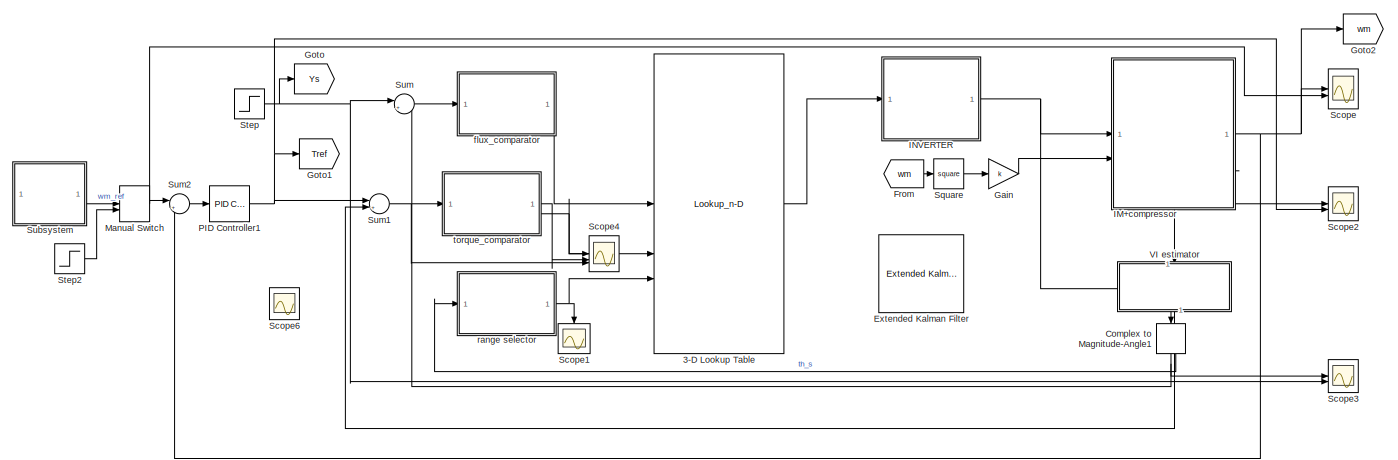
[diagram: root canvas - part 1/2, center side, full height]
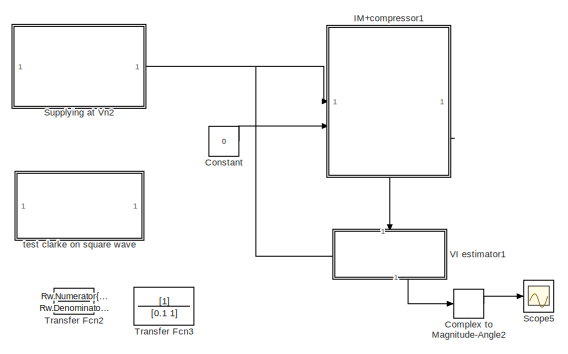
[diagram: root canvas - part 2/2, middle right region]
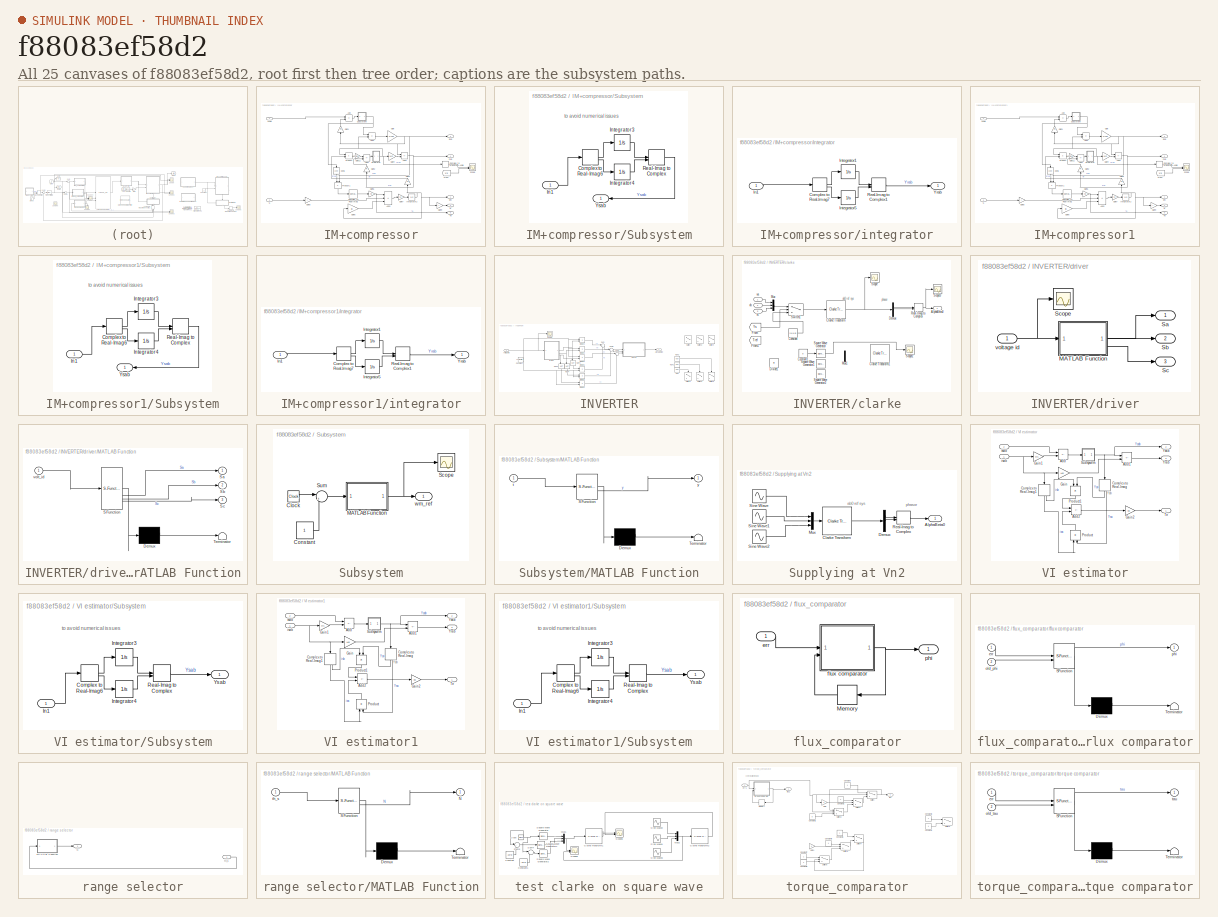
[diagram: thumbnail index - all 25 canvases of the model, root first then tree order]
MODEL slx_f88083ef58d2
KIND model
CONFIG AbsTol = auto
CONFIG EnableMultiTasking = off
CONFIG FixedStep = auto
CONFIG MaxStep = auto
CONFIG MinStep = auto
CONFIG RelTol = 1e-3
CONFIG SampleTimeConstraint = Unconstrained
CONFIG SolverName = ode113
CONFIG StartTime = 0.0
CONFIG StopTime = 100.0
BLOCK [Lookup_n-D] 3-D Lookup Table
  BreakpointsForDimension1 = [0;1]
  BreakpointsForDimension2 = [-1 0 1]
  BreakpointsForDimension3 = [1;2;3;4;5;6]
  InputPortMap = u0,u1,u2
  InternalRulePriority = Speed
  NumberOfTableDimensions = 3
  RndMeth = Simplest
  Table = reshape([1 5 0 7 2 6 5 4 7 0 3 2 4 6 0 7 1 3 6 2 7 0 5 1 2 3 0 7 4 5 3 1 7 0 6 4], [2 3 6])
BLOCK [ComplexToMagnitudeAngle] Complex to Magnitude-Angle1
  NameLocation = left
BLOCK [ComplexToMagnitudeAngle] Complex to Magnitude-Angle2
  Commented = on
BLOCK [Constant] Constant
  Commented = on
  Value = 0
BLOCK [Reference] Extended Kalman Filter  REF=sharedTrackingLibrary/Extended Kalman Filter
  Commented = on
  LibrarySourceBlock = cstblocks/State Estimation/Extended Kalman Filter
  SourceBlock = sharedTrackingLibrary/Extended Kalman Filter
  SourceType = Extended Kalman Filter
BLOCK [From] From
  GotoTag = wm
  TagVisibility = global
BLOCK [Gain] Gain
  Gain = k
BLOCK [Goto] Goto
  GotoTag = Ys
  TagVisibility = global
BLOCK [Goto] Goto1
  GotoTag = Tref
  TagVisibility = global
BLOCK [Goto] Goto2
  GotoTag = wm
  TagVisibility = global
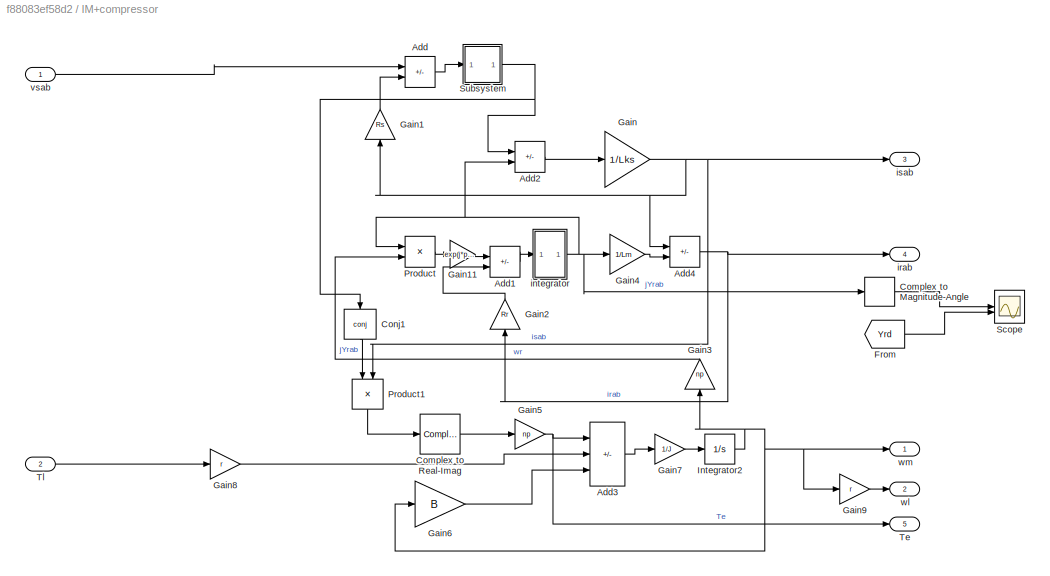
BLOCK [SubSystem] IM+compressor
BLOCK [Sum] IM+compressor/Add
  IconShape = rectangular
  Inputs = +-
BLOCK [Sum] IM+compressor/Add1
  IconShape = rectangular
  Inputs = +-
BLOCK [Sum] IM+compressor/Add2
  IconShape = rectangular
  Inputs = +-
BLOCK [Sum] IM+compressor/Add3
  IconShape = rectangular
  Inputs = +--
BLOCK [Sum] IM+compressor/Add4
  IconShape = rectangular
  Inputs = -+
BLOCK [ComplexToMagnitudeAngle] IM+compressor/Complex to Magnitude-Angle
BLOCK [ComplexToRealImag] IM+compressor/Complex to Real-Imag
  Output = Imag
BLOCK [Math] IM+compressor/Conj1
  NameLocation = left
  Operator = conj
BLOCK [From] IM+compressor/From
  GotoTag = Yrd
BLOCK [Gain] IM+compressor/Gain
  Gain = 1/Lks
BLOCK [Gain] IM+compressor/Gain1
  Gain = Rs
  NameLocation = right
BLOCK [Gain] IM+compressor/Gain11
  Gain = exp(j*pi/2)
BLOCK [Gain] IM+compressor/Gain2
  Gain = Rr
  NameLocation = right
BLOCK [Gain] IM+compressor/Gain3
  Gain = np
  NameLocation = right
BLOCK [Gain] IM+compressor/Gain4
  Gain = 1/Lm
BLOCK [Gain] IM+compressor/Gain5
  Gain = np
BLOCK [Gain] IM+compressor/Gain6
  Gain = B
BLOCK [Gain] IM+compressor/Gain7
  Gain = 1/J
BLOCK [Gain] IM+compressor/Gain8
  Gain = r
BLOCK [Gain] IM+compressor/Gain9
  Gain = r
BLOCK [Integrator] IM+compressor/Integrator2
BLOCK [Product] IM+compressor/Product
BLOCK [Product] IM+compressor/Product1
  NameLocation = left
BLOCK [Scope] IM+compressor/Scope
  Floating = off
  NumInputPorts = 2
  ScopeSpecificationString = Simulink.scopes.TimeScopeBlockCfg('CurrentConfiguration', extmgr.ConfigurationSet(extmgr.Configuration('Core','General UI',true),extmgr.Configuration('Core','Source UI',true),extmgr.Configuration('Sources','WiredSimulink',true,'DataLoggingVariableName','ScopeData5'),extmgr.Configuration('Visuals','Time Domain',true,'SerializedDisplays',{struct('MinYLimReal','-1.21495','MaxYLimReal','10.93453','YLa...<+1521ch>
BLOCK [SubSystem] IM+compressor/Subsystem
BLOCK [ComplexToRealImag] IM+compressor/Subsystem/Complex to Real-Imag6
BLOCK [Inport] IM+compressor/Subsystem/In1
BLOCK [Integrator] IM+compressor/Subsystem/Integrator3
BLOCK [Integrator] IM+compressor/Subsystem/Integrator4
BLOCK [RealImagToComplex] IM+compressor/Subsystem/Real-Imag to Complex
BLOCK [Outport] IM+compressor/Subsystem/Ysab
BLOCK [Outport] IM+compressor/Te
  Port = 5
BLOCK [Inport] IM+compressor/Tl
  Port = 2
BLOCK [SubSystem] IM+compressor/integrator
BLOCK [ComplexToRealImag] IM+compressor/integrator/Complex to Real-Imag7
BLOCK [Inport] IM+compressor/integrator/In1
BLOCK [Integrator] IM+compressor/integrator/Integrator1
BLOCK [Integrator] IM+compressor/integrator/Integrator5
BLOCK [RealImagToComplex] IM+compressor/integrator/Real-Imag to Complex1
BLOCK [Outport] IM+compressor/integrator/Yrab
BLOCK [Outport] IM+compressor/irab
  Port = 4
  SignalType = complex
BLOCK [Outport] IM+compressor/isab
  Port = 3
  SignalType = complex
BLOCK [Inport] IM+compressor/vsab
BLOCK [Outport] IM+compressor/wl
  Port = 2
BLOCK [Outport] IM+compressor/wm
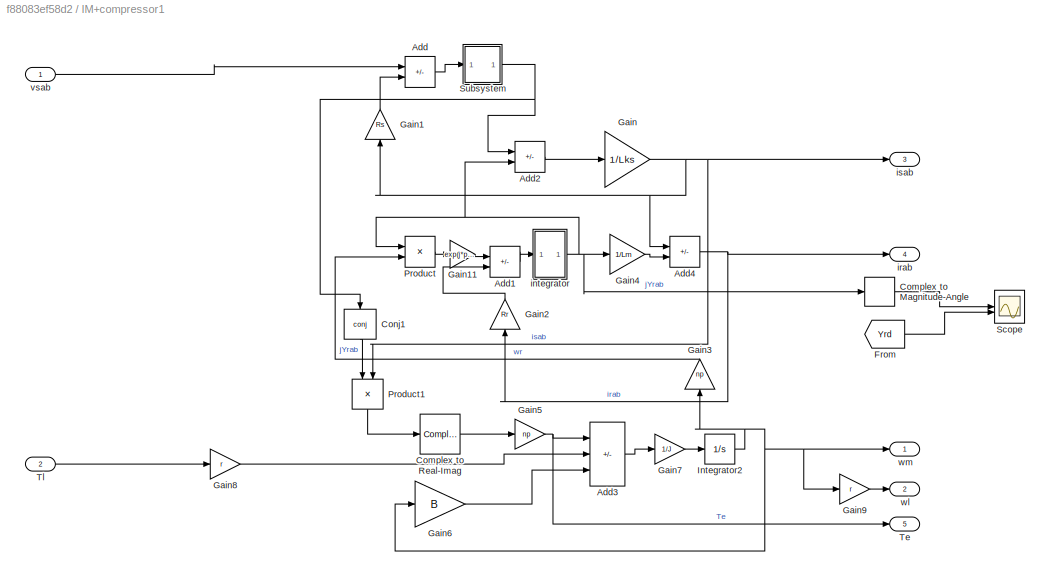
BLOCK [SubSystem] IM+compressor1
  Commented = on
BLOCK [Sum] IM+compressor1/Add
  IconShape = rectangular
  Inputs = +-
BLOCK [Sum] IM+compressor1/Add1
  IconShape = rectangular
  Inputs = +-
BLOCK [Sum] IM+compressor1/Add2
  IconShape = rectangular
  Inputs = +-
BLOCK [Sum] IM+compressor1/Add3
  IconShape = rectangular
  Inputs = +--
BLOCK [Sum] IM+compressor1/Add4
  IconShape = rectangular
  Inputs = -+
BLOCK [ComplexToMagnitudeAngle] IM+compressor1/Complex to Magnitude-Angle
BLOCK [ComplexToRealImag] IM+compressor1/Complex to Real-Imag
  Output = Imag
BLOCK [Math] IM+compressor1/Conj1
  NameLocation = left
  Operator = conj
BLOCK [From] IM+compressor1/From
  GotoTag = Yrd
BLOCK [Gain] IM+compressor1/Gain
  Gain = 1/Lks
BLOCK [Gain] IM+compressor1/Gain1
  Gain = Rs
  NameLocation = right
BLOCK [Gain] IM+compressor1/Gain11
  Gain = exp(j*pi/2)
BLOCK [Gain] IM+compressor1/Gain2
  Gain = Rr
  NameLocation = right
BLOCK [Gain] IM+compressor1/Gain3
  Gain = np
  NameLocation = right
BLOCK [Gain] IM+compressor1/Gain4
  Gain = 1/Lm
BLOCK [Gain] IM+compressor1/Gain5
  Gain = np
BLOCK [Gain] IM+compressor1/Gain6
  Gain = B
BLOCK [Gain] IM+compressor1/Gain7
  Gain = 1/J
BLOCK [Gain] IM+compressor1/Gain8
  Gain = r
BLOCK [Gain] IM+compressor1/Gain9
  Gain = r
BLOCK [Integrator] IM+compressor1/Integrator2
BLOCK [Product] IM+compressor1/Product
BLOCK [Product] IM+compressor1/Product1
  NameLocation = left
BLOCK [Scope] IM+compressor1/Scope
  Floating = off
  NumInputPorts = 2
  ScopeSpecificationString = Simulink.scopes.TimeScopeBlockCfg('CurrentConfiguration', extmgr.ConfigurationSet(extmgr.Configuration('Core','General UI',true),extmgr.Configuration('Core','Source UI',true),extmgr.Configuration('Sources','WiredSimulink',true,'DataLoggingVariableName','ScopeData5'),extmgr.Configuration('Visuals','Time Domain',true,'SerializedDisplays',{struct('MinYLimReal','-1.21495','MaxYLimReal','10.93453','YLa...<+1521ch>
BLOCK [SubSystem] IM+compressor1/Subsystem
BLOCK [ComplexToRealImag] IM+compressor1/Subsystem/Complex to Real-Imag6
BLOCK [Inport] IM+compressor1/Subsystem/In1
BLOCK [Integrator] IM+compressor1/Subsystem/Integrator3
BLOCK [Integrator] IM+compressor1/Subsystem/Integrator4
BLOCK [RealImagToComplex] IM+compressor1/Subsystem/Real-Imag to Complex
BLOCK [Outport] IM+compressor1/Subsystem/Ysab
BLOCK [Outport] IM+compressor1/Te
  Port = 5
BLOCK [Inport] IM+compressor1/Tl
  Port = 2
BLOCK [SubSystem] IM+compressor1/integrator
BLOCK [ComplexToRealImag] IM+compressor1/integrator/Complex to Real-Imag7
BLOCK [Inport] IM+compressor1/integrator/In1
BLOCK [Integrator] IM+compressor1/integrator/Integrator1
BLOCK [Integrator] IM+compressor1/integrator/Integrator5
BLOCK [RealImagToComplex] IM+compressor1/integrator/Real-Imag to Complex1
BLOCK [Outport] IM+compressor1/integrator/Yrab
BLOCK [Outport] IM+compressor1/irab
  Port = 4
  SignalType = complex
BLOCK [Outport] IM+compressor1/isab
  Port = 3
  SignalType = complex
BLOCK [Inport] IM+compressor1/vsab
BLOCK [Outport] IM+compressor1/wl
  Port = 2
BLOCK [Outport] IM+compressor1/wm
BLOCK [SubSystem] INVERTER
BLOCK [Outport] INVERTER/AlphaBeta0
BLOCK [Constant] INVERTER/Constant
  Value = vsat*sqrt(2)/2
BLOCK [Product] INVERTER/Divide1
  Inputs = **
BLOCK [Product] INVERTER/Divide2
  Inputs = **
BLOCK [Product] INVERTER/Divide3
  Inputs = **
BLOCK [Product] INVERTER/Divide4
  Inputs = **
BLOCK [Product] INVERTER/Divide5
  Inputs = **
BLOCK [Product] INVERTER/Divide6
  Inputs = **
BLOCK [Logic] INVERTER/NOT
  AllPortsSameDT = off
  Commented = on
  IconShape = distinctive
  Operator = NOT
  OutDataTypeStr = boolean
BLOCK [Logic] INVERTER/NOT1
  AllPortsSameDT = off
  Commented = on
  IconShape = distinctive
  Operator = NOT
  OutDataTypeStr = boolean
BLOCK [Logic] INVERTER/NOT2
  AllPortsSameDT = off
  Commented = on
  IconShape = distinctive
  Operator = NOT
  OutDataTypeStr = boolean
BLOCK [Logic] INVERTER/NOT3
  AllPortsSameDT = off
  IconShape = distinctive
  NameLocation = left
  Operator = NOT
  OutDataTypeStr = boolean
BLOCK [Logic] INVERTER/NOT4
  AllPortsSameDT = off
  IconShape = distinctive
  NameLocation = left
  Operator = NOT
  OutDataTypeStr = boolean
BLOCK [Logic] INVERTER/NOT5
  AllPortsSameDT = off
  IconShape = distinctive
  NameLocation = left
  Operator = NOT
  OutDataTypeStr = boolean
BLOCK [Scope] INVERTER/Scope
  Floating = off
  NumInputPorts = 1
  ScopeSpecificationString = Simulink.scopes.TimeScopeBlockCfg('CurrentConfiguration', extmgr.ConfigurationSet(extmgr.Configuration('Core','General UI',true),extmgr.Configuration('Core','Source UI',true),extmgr.Configuration('Sources','WiredSimulink',true,'DataLoggingVariableName','ScopeData5'),extmgr.Configuration('Visuals','Time Domain',true,'SerializedDisplays',{struct('MinYLimReal','0.25','MaxYLimReal','7.75','YLabelReal'...<+1506ch>
BLOCK [Sum] INVERTER/Sum
  Inputs = |+-
BLOCK [Sum] INVERTER/Sum1
  Inputs = |+-
BLOCK [Sum] INVERTER/Sum2
  Inputs = |+-
BLOCK [Switch] INVERTER/Switch
  Commented = on
  Criteria = u2 > Threshold
  InputSameDT = off
  NameLocation = left
  SaturateOnIntegerOverflow = off
BLOCK [Switch] INVERTER/Switch1
  Commented = on
  Criteria = u2 > Threshold
  InputSameDT = off
  NameLocation = left
  SaturateOnIntegerOverflow = off
BLOCK [Switch] INVERTER/Switch2
  Commented = on
  Criteria = u2 > Threshold
  InputSameDT = off
  NameLocation = left
  SaturateOnIntegerOverflow = off
BLOCK [Switch] INVERTER/Switch3
  Commented = on
  Criteria = u2 > Threshold
  InputSameDT = off
  NameLocation = left
  SaturateOnIntegerOverflow = off
BLOCK [Switch] INVERTER/Switch4
  Commented = on
  Criteria = u2 > Threshold
  InputSameDT = off
  NameLocation = left
  SaturateOnIntegerOverflow = off
BLOCK [Switch] INVERTER/Switch5
  Commented = on
  Criteria = u2 > Threshold
  InputSameDT = off
  NameLocation = left
  SaturateOnIntegerOverflow = off
BLOCK [SubSystem] INVERTER/clarke
BLOCK [Outport] INVERTER/clarke/AlphaBeta0
BLOCK [Reference] INVERTER/clarke/Clarke Transform  REF=eeTransforms/Clarke Transform
  LibrarySourceBlock = ee_sl_lib/Mathematical\nTransforms/Clarke Transform
  SourceBlock = eeTransforms/Clarke Transform
  SourceType = Clarke Transform
BLOCK [Reference] INVERTER/clarke/Clarke Transform1  REF=eeTransforms/Clarke Transform
  Commented = on
  LibrarySourceBlock = ee_sl_lib/Mathematical\nTransforms/Clarke Transform
  SourceBlock = eeTransforms/Clarke Transform
  SourceType = Clarke Transform
BLOCK [Constant] INVERTER/clarke/Constant
  Value = [0,0,0]
BLOCK [Constant] INVERTER/clarke/Constant1
  Commented = on
  Value = 0
BLOCK [Demux] INVERTER/clarke/Demux
  Outputs = 3
BLOCK [Product] INVERTER/clarke/Divide1
  Inputs = **
BLOCK [From] INVERTER/clarke/From
  GotoTag = Ys
  TagVisibility = global
BLOCK [From] INVERTER/clarke/From1
  GotoTag = Tref
  TagVisibility = global
BLOCK [Mux] INVERTER/clarke/Mux
  DisplayOption = bar
  Inputs = 3
BLOCK [Mux] INVERTER/clarke/Mux1
  Commented = on
  DisplayOption = bar
  Inputs = 3
BLOCK [RealImagToComplex] INVERTER/clarke/Real-Imag to Complex
BLOCK [Scope] INVERTER/clarke/Scope
  Floating = off
  NumInputPorts = 1
  ScopeSpecificationString = Simulink.scopes.TimeScopeBlockCfg('CurrentConfiguration', extmgr.ConfigurationSet(extmgr.Configuration('Core','General UI',true),extmgr.Configuration('Core','Source UI',true),extmgr.Configuration('Sources','WiredSimulink',true,'DataLoggingVariableName','ScopeData6'),extmgr.Configuration('Visuals','Time Domain',true,'SerializedDisplays',{struct('MinYLimReal','-551.80986','MaxYLimReal','578.42671','...<+1671ch>
BLOCK [Scope] INVERTER/clarke/Scope2
  Commented = on
  Floating = off
  NumInputPorts = 2
  ScopeSpecificationString = Simulink.scopes.TimeScopeBlockCfg('CurrentConfiguration', extmgr.ConfigurationSet(extmgr.Configuration('Core','General UI',true),extmgr.Configuration('Core','Source UI',true),extmgr.Configuration('Sources','WiredSimulink',true,'DataLoggingVariableName','ScopeData1'),extmgr.Configuration('Visuals','Time Domain',true,'SerializedDisplays',{struct('MinYLimReal','-427.5','MaxYLimReal','47.5','YLabelRea...<+1590ch>
BLOCK [Scope] INVERTER/clarke/Scope3
  Floating = off
  NumInputPorts = 1
  ScopeSpecificationString = Simulink.scopes.TimeScopeBlockCfg('CurrentConfiguration', extmgr.ConfigurationSet(extmgr.Configuration('Core','General UI',true),extmgr.Configuration('Core','Source UI',true),extmgr.Configuration('Sources','WiredSimulink',true,'DataLoggingVariableName','ScopeData1'),extmgr.Configuration('Visuals','Time Domain',true,'SerializedDisplays',{struct('MinYLimReal','-548.48276','MaxYLimReal','548.48276','...<+1470ch>
BLOCK [SignalGenerator] INVERTER/clarke/Square Wave Generator
  Amplitude = 380
  Commented = on
  TimeSource = Use external signal
  Units = rad/sec
  WaveForm = square
BLOCK [SignalGenerator] INVERTER/clarke/Square Wave Generator1
  Amplitude = 380
  Commented = on
  Frequency = 50*2*pi
  Units = rad/sec
  WaveForm = square
BLOCK [SignalGenerator] INVERTER/clarke/Square Wave Generator2
  Amplitude = 380
  Commented = on
  Frequency = 50*2*pi
  Units = rad/sec
  WaveForm = square
BLOCK [Switch] INVERTER/clarke/Switch1
  Criteria = u2 > Threshold
  InputSameDT = off
  SaturateOnIntegerOverflow = off
  ZeroCross = off
BLOCK [Inport] INVERTER/clarke/va
BLOCK [Inport] INVERTER/clarke/vb
  Port = 2
BLOCK [Inport] INVERTER/clarke/vc
  Port = 3
BLOCK [SubSystem] INVERTER/driver
BLOCK [SubSystem] INVERTER/driver/MATLAB Function
  ErrorFcn = Stateflow.Translate.translate
  LibrarySourceBlock = simulink/User-Defined\nFunctions/MATLAB Function
  PermitHierarchicalResolution = ExplicitOnly
  SFBlockType = MATLAB Function
  TreatAsAtomicUnit = on
BLOCK [Demux] INVERTER/driver/MATLAB Function/ Demux 
  Outputs = 1
BLOCK [S-Function] INVERTER/driver/MATLAB Function/ SFunction 
  EnableBusSupport = on
  FunctionName = sf_sfun
  PortCounts = [1 4]
  SFcnIsStateOwnerBlock = off
  SFunctionDeploymentMode = off
  Tag = Stateflow S-Function 4
BLOCK [Terminator] INVERTER/driver/MATLAB Function/ Terminator 
BLOCK [Outport] INVERTER/driver/MATLAB Function/Sa
BLOCK [Outport] INVERTER/driver/MATLAB Function/Sb
  Port = 2
BLOCK [Outport] INVERTER/driver/MATLAB Function/Sc
  Port = 3
BLOCK [Inport] INVERTER/driver/MATLAB Function/volt_id
BLOCK [Outport] INVERTER/driver/Sa
BLOCK [Outport] INVERTER/driver/Sb
  Port = 2
BLOCK [Outport] INVERTER/driver/Sc
  Port = 3
BLOCK [Scope] INVERTER/driver/Scope
  Floating = off
  NumInputPorts = 1
  ScopeSpecificationString = Simulink.scopes.TimeScopeBlockCfg('CurrentConfiguration', extmgr.ConfigurationSet(extmgr.Configuration('Core','General UI',true),extmgr.Configuration('Core','Source UI',true),extmgr.Configuration('Sources','WiredSimulink',true,'DataLoggingVariableName','ScopeData4'),extmgr.Configuration('Visuals','Time Domain',true,'SerializedDisplays',{struct('MinYLimReal','-0.875','MaxYLimReal','7.875','YLabelRe...<+1401ch>
BLOCK [Inport] INVERTER/driver/voltage id
BLOCK [Inport] INVERTER/voltage id
BLOCK [ManualSwitch] Manual Switch
  CurrentSetting = 0
BLOCK [Reference] PID Controller1  REF=slpidlib/PID Controller
  LibrarySourceBlock = simulink/Continuous/PID Controller
  SourceBlock = slpidlib/PID Controller
  SourceType = PID 1dof
BLOCK [Scope] Scope
  Floating = off
  NumInputPorts = 3
  ScopeSpecificationString = Simulink.scopes.TimeScopeBlockCfg('CurrentConfiguration', extmgr.ConfigurationSet(extmgr.Configuration('Core','General UI',true),extmgr.Configuration('Core','Source UI',true),extmgr.Configuration('Sources','WiredSimulink',true,'DataLoggingVariableName','ScopeData1'),extmgr.Configuration('Visuals','Time Domain',true,'SerializedDisplays',{struct('MinYLimReal','-25.00000','MaxYLimReal','225.00000','Y...<+1582ch>
BLOCK [Scope] Scope1
  Floating = off
  NameLocation = left
  NumInputPorts = 1
  ScopeSpecificationString = Simulink.scopes.TimeScopeBlockCfg('CurrentConfiguration', extmgr.ConfigurationSet(extmgr.Configuration('Core','General UI',true),extmgr.Configuration('Core','Source UI',true),extmgr.Configuration('Sources','WiredSimulink',true,'DataLoggingVariableName','ScopeData2'),extmgr.Configuration('Visuals','Time Domain',true,'SerializedDisplays',{struct('MinYLimReal','0.375','MaxYLimReal','6.625','YLabelRea...<+1428ch>
BLOCK [Scope] Scope2
  Floating = off
  NumInputPorts = 3
  ScopeSpecificationString = Simulink.scopes.TimeScopeBlockCfg('CurrentConfiguration', extmgr.ConfigurationSet(extmgr.Configuration('Core','General UI',true),extmgr.Configuration('Core','Source UI',true),extmgr.Configuration('Sources','WiredSimulink',true,'DataLoggingVariableName','ScopeData2'),extmgr.Configuration('Visuals','Time Domain',true,'SerializedDisplays',{struct('MinYLimReal','-87.5','MaxYLimReal','787.5','YLabelRea...<+1559ch>
BLOCK [Scope] Scope3
  Floating = off
  NumInputPorts = 2
  ScopeSpecificationString = Simulink.scopes.TimeScopeBlockCfg('CurrentConfiguration', extmgr.ConfigurationSet(extmgr.Configuration('Core','General UI',true),extmgr.Configuration('Core','Source UI',true),extmgr.Configuration('Sources','WiredSimulink',true,'DataLoggingVariableName','ScopeData3'),extmgr.Configuration('Visuals','Time Domain',true,'SerializedDisplays',{struct('MinYLimReal','1.61459','MaxYLimReal','1.76423','YLabe...<+1768ch>
BLOCK [Scope] Scope4
  Floating = off
  NumInputPorts = 3
  ScopeSpecificationString = Simulink.scopes.TimeScopeBlockCfg('CurrentConfiguration', extmgr.ConfigurationSet(extmgr.Configuration('Core','General UI',true),extmgr.Configuration('Core','Source UI',true),extmgr.Configuration('Sources','WiredSimulink',true,'DataLoggingVariableName','ScopeData8'),extmgr.Configuration('Visuals','Time Domain',true,'SerializedDisplays',{struct('MinYLimReal','-213.84162','MaxYLimReal','801.53796','...<+1567ch>
BLOCK [Scope] Scope5
  Commented = on
  Floating = off
  NumInputPorts = 1
  ScopeSpecificationString = Simulink.scopes.TimeScopeBlockCfg('CurrentConfiguration', extmgr.ConfigurationSet(extmgr.Configuration('Core','General UI',true),extmgr.Configuration('Core','Source UI',true),extmgr.Configuration('Sources','WiredSimulink',true,'DataLoggingVariableName','ScopeData2'),extmgr.Configuration('Visuals','Time Domain',true,'SerializedDisplays',{struct('MinYLimReal','-0.3438','MaxYLimReal','3.09418','YLabe...<+1456ch>
BLOCK [Scope] Scope6
  Floating = off
  NumInputPorts = 1
  ScopeSpecificationString = Simulink.scopes.TimeScopeBlockCfg('CurrentConfiguration', extmgr.ConfigurationSet(extmgr.Configuration('Core','General UI',true),extmgr.Configuration('Core','Source UI',true),extmgr.Configuration('Sources','WiredSimulink',true,'DataLoggingVariableName','ScopeData1'),extmgr.Configuration('Visuals','Time Domain',true,'SerializedDisplays',{struct('MinYLimReal','-1.00000','MaxYLimReal','1.00000','YLab...<+1428ch>
BLOCK [Math] Square
  Operator = square
BLOCK [Step] Step
  After = Ys_n
  SampleTime = 0
  Time = 0
BLOCK [Step] Step2
  After = 50
  SampleTime = 0
BLOCK [SubSystem] Subsystem
BLOCK [Clock] Subsystem/Clock
BLOCK [Constant] Subsystem/Constant
BLOCK [SubSystem] Subsystem/MATLAB Function
  ErrorFcn = Stateflow.Translate.translate
  LibrarySourceBlock = simulink/User-Defined\nFunctions/MATLAB Function
  PermitHierarchicalResolution = ExplicitOnly
  SFBlockType = MATLAB Function
  TreatAsAtomicUnit = on
BLOCK [Demux] Subsystem/MATLAB Function/ Demux 
  Outputs = 1
BLOCK [S-Function] Subsystem/MATLAB Function/ SFunction 
  EnableBusSupport = on
  FunctionName = sf_sfun
  PortCounts = [1 2]
  SFcnIsStateOwnerBlock = off
  SFunctionDeploymentMode = off
  Tag = Stateflow S-Function 5
BLOCK [Terminator] Subsystem/MATLAB Function/ Terminator 
BLOCK [Inport] Subsystem/MATLAB Function/t
BLOCK [Outport] Subsystem/MATLAB Function/y
BLOCK [Scope] Subsystem/Scope
  Floating = off
  NumInputPorts = 1
  ScopeSpecificationString = Simulink.scopes.TimeScopeBlockCfg('CurrentConfiguration', extmgr.ConfigurationSet(extmgr.Configuration('Core','General UI',true),extmgr.Configuration('Core','Source UI',true),extmgr.Configuration('Sources','WiredSimulink',true,'DataLoggingVariableName','ScopeData4'),extmgr.Configuration('Visuals','Time Domain',true,'SerializedDisplays',{struct('MinYLimReal','-2.615','MaxYLimReal','23.535','YLabelR...<+1409ch>
BLOCK [Sum] Subsystem/Sum
  Inputs = |+-
BLOCK [Outport] Subsystem/wm_ref
BLOCK [Sum] Sum
  Inputs = |+-
BLOCK [Sum] Sum1
  Inputs = |+-
BLOCK [Sum] Sum2
  Inputs = |+-
BLOCK [SubSystem] Supplying at Vn2
  Commented = on
BLOCK [Outport] Supplying at Vn2/AlphaBeta0
BLOCK [Reference] Supplying at Vn2/Clarke Transform  REF=eeTransforms/Clarke Transform
  LibrarySourceBlock = ee_sl_lib/Mathematical\nTransforms/Clarke Transform
  SourceBlock = eeTransforms/Clarke Transform
  SourceType = Clarke Transform
BLOCK [Demux] Supplying at Vn2/Demux
  Outputs = 3
BLOCK [Mux] Supplying at Vn2/Mux
  DisplayOption = bar
  Inputs = 3
BLOCK [RealImagToComplex] Supplying at Vn2/Real-Imag to Complex
BLOCK [Sin] Supplying at Vn2/Sine Wave
  Amplitude = vsat*sqrt(2)
  Frequency = f*2*pi
  SampleTime = 0
BLOCK [Sin] Supplying at Vn2/Sine Wave1
  Amplitude = vsat*sqrt(2)
  Frequency = f*2*pi
  Phase = -2/3*pi
  SampleTime = 0
BLOCK [Sin] Supplying at Vn2/Sine Wave2
  Amplitude = vsat*sqrt(2)
  Frequency = f*2*pi
  Phase = -4/3*pi
  SampleTime = 0
BLOCK [TransferFcn] Transfer Fcn2
  Commented = on
  Denominator = Rw.Denominator{1,1}
  Numerator = Rw.Numerator{1,1}
BLOCK [TransferFcn] Transfer Fcn3
  Commented = on
  Denominator = [0.1 1]
BLOCK [SubSystem] VI estimator
  NameLocation = top
  PortSchema = {"entries":[{"content":{"sides":[{"content":{},"type":"ConnectorPlacement.EquallySpacedRectSide","uuid":"e33eea5d-c803-4efd-b963-b28e7fd3b846"},{"content":{"connectorIds":["Out1","Out2","Out3"],"side":"RIGHT"},"type":"ConnectorPlacement.EquallySpacedRectSide","uuid":"16dd9f0c-f93f-4294-bb00-4f02950fe655"},{"content":{"connectorIds":["In1"],"side":"TOP"},"type":"ConnectorPlacement.EquallySpacedRect...<+386ch>
BLOCK [Sum] VI estimator/Add
  IconShape = rectangular
  Inputs = +-
BLOCK [Sum] VI estimator/Add1
  IconShape = rectangular
  Inputs = +-
BLOCK [Sum] VI estimator/Add2
  IconShape = rectangular
  Inputs = +-
BLOCK [ComplexToRealImag] VI estimator/Complex to Real-Imag
  NameLocation = left
BLOCK [ComplexToRealImag] VI estimator/Complex to Real-Imag1
  NameLocation = left
BLOCK [Gain] VI estimator/Gain
  Gain = Lks
BLOCK [Gain] VI estimator/Gain1
  Gain = Rs
BLOCK [Gain] VI estimator/Gain2
  Gain = np
BLOCK [Product] VI estimator/Product
  NameLocation = right
BLOCK [Product] VI estimator/Product1
  NameLocation = left
BLOCK [SubSystem] VI estimator/Subsystem
BLOCK [ComplexToRealImag] VI estimator/Subsystem/Complex to Real-Imag6
BLOCK [Inport] VI estimator/Subsystem/In1
BLOCK [Integrator] VI estimator/Subsystem/Integrator3
BLOCK [Integrator] VI estimator/Subsystem/Integrator4
BLOCK [RealImagToComplex] VI estimator/Subsystem/Real-Imag to Complex
BLOCK [Outport] VI estimator/Subsystem/Ysab
  NameLocation = top
BLOCK [Outport] VI estimator/Te
BLOCK [Outport] VI estimator/Yrab
  Port = 3
BLOCK [Outport] VI estimator/Ysab
  Port = 2
BLOCK [Inport] VI estimator/isab
BLOCK [Inport] VI estimator/vsab
  Port = 2
BLOCK [SubSystem] VI estimator1
  Commented = on
  NameLocation = top
  PortSchema = {"entries":[{"content":{"sides":[{"content":{},"type":"ConnectorPlacement.EquallySpacedRectSide","uuid":"e33eea5d-c803-4efd-b963-b28e7fd3b846"},{"content":{"connectorIds":["Out1","Out2","Out3"],"side":"RIGHT"},"type":"ConnectorPlacement.EquallySpacedRectSide","uuid":"16dd9f0c-f93f-4294-bb00-4f02950fe655"},{"content":{"connectorIds":["In1"],"side":"TOP"},"type":"ConnectorPlacement.EquallySpacedRect...<+386ch>
BLOCK [Sum] VI estimator1/Add
  IconShape = rectangular
  Inputs = +-
BLOCK [Sum] VI estimator1/Add1
  IconShape = rectangular
  Inputs = +-
BLOCK [Sum] VI estimator1/Add2
  IconShape = rectangular
  Inputs = +-
BLOCK [ComplexToRealImag] VI estimator1/Complex to Real-Imag
  NameLocation = left
BLOCK [ComplexToRealImag] VI estimator1/Complex to Real-Imag1
  NameLocation = left
BLOCK [Gain] VI estimator1/Gain
  Gain = Lks
BLOCK [Gain] VI estimator1/Gain1
  Gain = Rs
BLOCK [Gain] VI estimator1/Gain2
  Gain = np
BLOCK [Product] VI estimator1/Product
  NameLocation = right
BLOCK [Product] VI estimator1/Product1
  NameLocation = left
BLOCK [SubSystem] VI estimator1/Subsystem
BLOCK [ComplexToRealImag] VI estimator1/Subsystem/Complex to Real-Imag6
BLOCK [Inport] VI estimator1/Subsystem/In1
BLOCK [Integrator] VI estimator1/Subsystem/Integrator3
BLOCK [Integrator] VI estimator1/Subsystem/Integrator4
BLOCK [RealImagToComplex] VI estimator1/Subsystem/Real-Imag to Complex
BLOCK [Outport] VI estimator1/Subsystem/Ysab
  NameLocation = top
BLOCK [Outport] VI estimator1/Te
BLOCK [Outport] VI estimator1/Yrab
  Port = 3
BLOCK [Outport] VI estimator1/Ysab
  Port = 2
BLOCK [Inport] VI estimator1/isab
BLOCK [Inport] VI estimator1/vsab
  Port = 2
BLOCK [SubSystem] flux_comparator
BLOCK [Memory] flux_comparator/Memory
  NameLocation = top
BLOCK [Inport] flux_comparator/err
BLOCK [SubSystem] flux_comparator/flux comparator
  ErrorFcn = Stateflow.Translate.translate
  LibrarySourceBlock = simulink/User-Defined\nFunctions/MATLAB Function
  PermitHierarchicalResolution = ExplicitOnly
  SFBlockType = MATLAB Function
  TreatAsAtomicUnit = on
BLOCK [Demux] flux_comparator/flux comparator/ Demux 
  Outputs = 1
BLOCK [S-Function] flux_comparator/flux comparator/ SFunction 
  EnableBusSupport = on
  FunctionName = sf_sfun
  PortCounts = [2 2]
  SFcnIsStateOwnerBlock = off
  SFunctionDeploymentMode = off
  Tag = Stateflow S-Function 2
BLOCK [Terminator] flux_comparator/flux comparator/ Terminator 
BLOCK [Inport] flux_comparator/flux comparator/err
BLOCK [Inport] flux_comparator/flux comparator/old_phi
  Port = 2
BLOCK [Outport] flux_comparator/flux comparator/phi
BLOCK [Outport] flux_comparator/phi
BLOCK [SubSystem] range selector
BLOCK [SubSystem] range selector/MATLAB Function
  ErrorFcn = Stateflow.Translate.translate
  LibrarySourceBlock = simulink/User-Defined\nFunctions/MATLAB Function
  PermitHierarchicalResolution = ExplicitOnly
  SFBlockType = MATLAB Function
  TreatAsAtomicUnit = on
BLOCK [Demux] range selector/MATLAB Function/ Demux 
  Outputs = 1
BLOCK [S-Function] range selector/MATLAB Function/ SFunction 
  EnableBusSupport = on
  FunctionName = sf_sfun
  PortCounts = [1 2]
  SFcnIsStateOwnerBlock = off
  SFunctionDeploymentMode = off
  Tag = Stateflow S-Function 3
BLOCK [Terminator] range selector/MATLAB Function/ Terminator 
BLOCK [Outport] range selector/MATLAB Function/N
BLOCK [Inport] range selector/MATLAB Function/th_s
BLOCK [Outport] range selector/N
BLOCK [Inport] range selector/th_s
BLOCK [SubSystem] test clarke on square wave
  Commented = on
BLOCK [Reference] test clarke on square wave/Clarke Transform1  REF=eeTransforms/Clarke Transform
  Commented = on
  LibrarySourceBlock = ee_sl_lib/Mathematical\nTransforms/Clarke Transform
  SourceBlock = eeTransforms/Clarke Transform
  SourceType = Clarke Transform
BLOCK [Reference] test clarke on square wave/Clarke Transform2  REF=eeTransforms/Clarke Transform
  Commented = on
  LibrarySourceBlock = ee_sl_lib/Mathematical\nTransforms/Clarke Transform
  SourceBlock = eeTransforms/Clarke Transform
  SourceType = Clarke Transform
BLOCK [Clock] test clarke on square wave/Clock
  Commented = on
BLOCK [Constant] test clarke on square wave/Constant
  Commented = on
  Value = -2/3*pi
BLOCK [Constant] test clarke on square wave/Constant1
  Commented = on
  Value = -4/3*pi
BLOCK [Mux] test clarke on square wave/Mux1
  Commented = on
  DisplayOption = bar
  Inputs = 3
BLOCK [Mux] test clarke on square wave/Mux2
  Commented = on
  DisplayOption = bar
  Inputs = 3
BLOCK [Scope] test clarke on square wave/Scope8
  Commented = on
  Floating = off
  NumInputPorts = 2
  ScopeSpecificationString = Simulink.scopes.TimeScopeBlockCfg('CurrentConfiguration', extmgr.ConfigurationSet(extmgr.Configuration('Core','General UI',true),extmgr.Configuration('Core','Source UI',true),extmgr.Configuration('Sources','WiredSimulink',true,'DataLoggingVariableName','ScopeData2'),extmgr.Configuration('Visuals','Time Domain',true,'SerializedDisplays',{struct('MinYLimReal','-775.67175','MaxYLimReal','775.67175','...<+1572ch>
BLOCK [Scope] test clarke on square wave/Scope9
  Commented = on
  Floating = off
  NumInputPorts = 2
  ScopeSpecificationString = Simulink.scopes.TimeScopeBlockCfg('CurrentConfiguration', extmgr.ConfigurationSet(extmgr.Configuration('Core','General UI',true),extmgr.Configuration('Core','Source UI',true),extmgr.Configuration('Sources','WiredSimulink',true,'DataLoggingVariableName','ScopeData3'),extmgr.Configuration('Visuals','Time Domain',true,'SerializedDisplays',{struct('MinYLimReal','-475.00000','MaxYLimReal','475.00000','...<+1673ch>
BLOCK [Sin] test clarke on square wave/Sine Wave1
  Amplitude = 380
  Commented = on
  Phase = -2/3*pi
  SampleTime = 0
BLOCK [Sin] test clarke on square wave/Sine Wave2
  Amplitude = 380
  Commented = on
  SampleTime = 0
BLOCK [Sin] test clarke on square wave/Sine Wave3
  Amplitude = 380
  Commented = on
  Phase = -4/3*pi
  SampleTime = 0
BLOCK [SignalGenerator] test clarke on square wave/Square Wave Generator
  Amplitude = -380
  Commented = on
  TimeSource = Use external signal
  Units = rad/sec
  WaveForm = square
BLOCK [SignalGenerator] test clarke on square wave/Square Wave Generator1
  Amplitude = -380
  Commented = on
  TimeSource = Use external signal
  Units = rad/sec
  WaveForm = square
BLOCK [SignalGenerator] test clarke on square wave/Square Wave Generator2
  Amplitude = -380
  Commented = on
  TimeSource = Use external signal
  Units = rad/sec
  WaveForm = square
BLOCK [Sum] test clarke on square wave/Sum3
  Commented = on
  Inputs = |++
BLOCK [Sum] test clarke on square wave/Sum4
  Commented = on
  Inputs = |++
BLOCK [SubSystem] torque_comparator
BLOCK [Constant] torque_comparator/Constant
BLOCK [Constant] torque_comparator/Constant1
  Value = -1
BLOCK [Constant] torque_comparator/Constant2
  Value = 0
BLOCK [Constant] torque_comparator/Constant3
  Commented = on
BLOCK [Constant] torque_comparator/Constant4
  Commented = on
  Value = -1
BLOCK [Constant] torque_comparator/Constant5
  Commented = on
BLOCK [Constant] torque_comparator/Constant6
  Commented = on
  Value = -1
BLOCK [Constant] torque_comparator/Constant7
  Commented = on
BLOCK [Constant] torque_comparator/Constant8
  Commented = on
  Value = -1
BLOCK [Gain] torque_comparator/Gain
  Gain = -1
BLOCK [Gain] torque_comparator/Gain1
  Commented = on
  Gain = -1
BLOCK [Memory] torque_comparator/Memory
  InheritSampleTime = on
  LinearizeAsDelay = on
  LinearizeMemory = on
  NameLocation = top
BLOCK [Switch] torque_comparator/Switch
  Criteria = u2 > Threshold
  InputSameDT = off
  SaturateOnIntegerOverflow = off
  Threshold = DT
  ZeroCross = off
BLOCK [Switch] torque_comparator/Switch1
  Criteria = u2 > Threshold
  InputSameDT = off
  SaturateOnIntegerOverflow = off
  Threshold = DT
  ZeroCross = off
BLOCK [Switch] torque_comparator/Switch2
  Criteria = u2 ~= 0
  InputSameDT = off
  SaturateOnIntegerOverflow = off
  ZeroCross = off
BLOCK [Switch] torque_comparator/Switch3
  Commented = on
  Criteria = u2 > Threshold
  InputSameDT = off
  SaturateOnIntegerOverflow = off
BLOCK [Switch] torque_comparator/Switch4
  Commented = on
  Criteria = u2 > Threshold
  InputSameDT = off
  SaturateOnIntegerOverflow = off
  Threshold = DT
BLOCK [Switch] torque_comparator/Switch5
  Commented = on
  Criteria = u2 > Threshold
  InputSameDT = off
  SaturateOnIntegerOverflow = off
  Threshold = DT
BLOCK [Switch] torque_comparator/Switch6
  Commented = on
  Criteria = u2 > Threshold
  InputSameDT = off
  SaturateOnIntegerOverflow = off
BLOCK [Inport] torque_comparator/err1
BLOCK [Outport] torque_comparator/tau
  Port = 2
BLOCK [Outport] torque_comparator/tau1
BLOCK [SubSystem] torque_comparator/torque comparator
  ErrorFcn = Stateflow.Translate.translate
  LibrarySourceBlock = simulink/User-Defined\nFunctions/MATLAB Function
  PermitHierarchicalResolution = ExplicitOnly
  SFBlockType = MATLAB Function
  TreatAsAtomicUnit = on
BLOCK [Demux] torque_comparator/torque comparator/ Demux 
  Outputs = 1
BLOCK [S-Function] torque_comparator/torque comparator/ SFunction 
  EnableBusSupport = on
  FunctionName = sf_sfun
  PortCounts = [2 2]
  SFcnIsStateOwnerBlock = off
  SFunctionDeploymentMode = off
  Tag = Stateflow S-Function 1
BLOCK [Terminator] torque_comparator/torque comparator/ Terminator 
BLOCK [Inport] torque_comparator/torque comparator/err
BLOCK [Inport] torque_comparator/torque comparator/old_tau
  Port = 2
BLOCK [Outport] torque_comparator/torque comparator/tau
ANNOTATION IM+compressor/Subsystem: to avoid numerical issues
ANNOTATION IM+compressor1/Subsystem: to avoid numerical issues
ANNOTATION INVERTER/clarke: ab0 ref sys
ANNOTATION INVERTER/clarke: phasor
ANNOTATION Supplying at Vn2: ab0 ref sys
ANNOTATION Supplying at Vn2: phasor
ANNOTATION VI estimator: Ysb
ANNOTATION VI estimator/Subsystem: to avoid numerical issues
ANNOTATION VI estimator1: Ysb
ANNOTATION VI estimator1/Subsystem: to avoid numerical issues
ANNOTATION torque_comparator: control switch to slow
LINE 3-D Lookup Table:1 -> INVERTER:1
NET Complex to Magnitude-Angle1:1 -> Scope3:1, Sum:2
LINE Complex to Magnitude-Angle1:2 -> range selector:1
LINE Complex to Magnitude-Angle2:1 -> Scope5:1
LINE Constant:1 -> IM+compressor1:2
LINE From:1 -> Square:1
LINE Gain:1 -> IM+compressor:2
LINE IM+compressor/Add1:1 -> IM+compressor/integrator:1
LINE IM+compressor/Add2:1 -> IM+compressor/Gain:1
LINE IM+compressor/Add3:1 -> IM+compressor/Gain7:1
NET IM+compressor/Add4:1 -> IM+compressor/Gain2:1, IM+compressor/irab:1
LINE IM+compressor/Add:1 -> IM+compressor/Subsystem:1
LINE IM+compressor/Complex to Magnitude-Angle:1 -> IM+compressor/Scope:1
LINE IM+compressor/Complex to Real-Imag:1 -> IM+compressor/Gain5:1
LINE IM+compressor/Conj1:1 -> IM+compressor/Product1:1
LINE IM+compressor/From:1 -> IM+compressor/Scope:2
LINE IM+compressor/Gain11:1 -> IM+compressor/Add1:1
LINE IM+compressor/Gain1:1 -> IM+compressor/Add:2
LINE IM+compressor/Gain2:1 -> IM+compressor/Add1:2
LINE IM+compressor/Gain3:1 -> IM+compressor/Product:2
LINE IM+compressor/Gain4:1 -> IM+compressor/Add4:2
NET IM+compressor/Gain5:1 -> IM+compressor/Add3:1, IM+compressor/Te:1
LINE IM+compressor/Gain6:1 -> IM+compressor/Add3:3
LINE IM+compressor/Gain7:1 -> IM+compressor/Integrator2:1
LINE IM+compressor/Gain8:1 -> IM+compressor/Add3:2
LINE IM+compressor/Gain9:1 -> IM+compressor/wl:1
NET IM+compressor/Gain:1 -> IM+compressor/Add4:1, IM+compressor/Gain1:1, IM+compressor/Product1:2, IM+compressor/isab:1
NET IM+compressor/Integrator2:1 -> IM+compressor/Gain3:1, IM+compressor/Gain6:1, IM+compressor/Gain9:1, IM+compressor/wm:1
LINE IM+compressor/Product1:1 -> IM+compressor/Complex to Real-Imag:1
LINE IM+compressor/Product:1 -> IM+compressor/Gain11:1
LINE IM+compressor/Subsystem/Complex to Real-Imag6:1 -> IM+compressor/Subsystem/Integrator3:1
LINE IM+compressor/Subsystem/Complex to Real-Imag6:2 -> IM+compressor/Subsystem/Integrator4:1
LINE IM+compressor/Subsystem/In1:1 -> IM+compressor/Subsystem/Complex to Real-Imag6:1
LINE IM+compressor/Subsystem/Integrator3:1 -> IM+compressor/Subsystem/Real-Imag to Complex:1
LINE IM+compressor/Subsystem/Integrator4:1 -> IM+compressor/Subsystem/Real-Imag to Complex:2
LINE IM+compressor/Subsystem/Real-Imag to Complex:1 -> IM+compressor/Subsystem/Ysab:1
NET IM+compressor/Subsystem:1 -> IM+compressor/Add2:1, IM+compressor/Conj1:1
LINE IM+compressor/Tl:1 -> IM+compressor/Gain8:1
LINE IM+compressor/integrator/Complex to Real-Imag7:1 -> IM+compressor/integrator/Integrator1:1
LINE IM+compressor/integrator/Complex to Real-Imag7:2 -> IM+compressor/integrator/Integrator5:1
LINE IM+compressor/integrator/In1:1 -> IM+compressor/integrator/Complex to Real-Imag7:1
LINE IM+compressor/integrator/Integrator1:1 -> IM+compressor/integrator/Real-Imag to Complex1:1
LINE IM+compressor/integrator/Integrator5:1 -> IM+compressor/integrator/Real-Imag to Complex1:2
LINE IM+compressor/integrator/Real-Imag to Complex1:1 -> IM+compressor/integrator/Yrab:1
NET IM+compressor/integrator:1 -> IM+compressor/Add2:2, IM+compressor/Complex to Magnitude-Angle:1, IM+compressor/Gain4:1, IM+compressor/Product:1
LINE IM+compressor/vsab:1 -> IM+compressor/Add:1
LINE IM+compressor1/Add1:1 -> IM+compressor1/integrator:1
LINE IM+compressor1/Add2:1 -> IM+compressor1/Gain:1
LINE IM+compressor1/Add3:1 -> IM+compressor1/Gain7:1
NET IM+compressor1/Add4:1 -> IM+compressor1/Gain2:1, IM+compressor1/irab:1
LINE IM+compressor1/Add:1 -> IM+compressor1/Subsystem:1
LINE IM+compressor1/Complex to Magnitude-Angle:1 -> IM+compressor1/Scope:1
LINE IM+compressor1/Complex to Real-Imag:1 -> IM+compressor1/Gain5:1
LINE IM+compressor1/Conj1:1 -> IM+compressor1/Product1:1
LINE IM+compressor1/From:1 -> IM+compressor1/Scope:2
LINE IM+compressor1/Gain11:1 -> IM+compressor1/Add1:1
LINE IM+compressor1/Gain1:1 -> IM+compressor1/Add:2
LINE IM+compressor1/Gain2:1 -> IM+compressor1/Add1:2
LINE IM+compressor1/Gain3:1 -> IM+compressor1/Product:2
LINE IM+compressor1/Gain4:1 -> IM+compressor1/Add4:2
NET IM+compressor1/Gain5:1 -> IM+compressor1/Add3:1, IM+compressor1/Te:1
LINE IM+compressor1/Gain6:1 -> IM+compressor1/Add3:3
LINE IM+compressor1/Gain7:1 -> IM+compressor1/Integrator2:1
LINE IM+compressor1/Gain8:1 -> IM+compressor1/Add3:2
LINE IM+compressor1/Gain9:1 -> IM+compressor1/wl:1
NET IM+compressor1/Gain:1 -> IM+compressor1/Add4:1, IM+compressor1/Gain1:1, IM+compressor1/Product1:2, IM+compressor1/isab:1
NET IM+compressor1/Integrator2:1 -> IM+compressor1/Gain3:1, IM+compressor1/Gain6:1, IM+compressor1/Gain9:1, IM+compressor1/wm:1
LINE IM+compressor1/Product1:1 -> IM+compressor1/Complex to Real-Imag:1
LINE IM+compressor1/Product:1 -> IM+compressor1/Gain11:1
LINE IM+compressor1/Subsystem/Complex to Real-Imag6:1 -> IM+compressor1/Subsystem/Integrator3:1
LINE IM+compressor1/Subsystem/Complex to Real-Imag6:2 -> IM+compressor1/Subsystem/Integrator4:1
LINE IM+compressor1/Subsystem/In1:1 -> IM+compressor1/Subsystem/Complex to Real-Imag6:1
LINE IM+compressor1/Subsystem/Integrator3:1 -> IM+compressor1/Subsystem/Real-Imag to Complex:1
LINE IM+compressor1/Subsystem/Integrator4:1 -> IM+compressor1/Subsystem/Real-Imag to Complex:2
LINE IM+compressor1/Subsystem/Real-Imag to Complex:1 -> IM+compressor1/Subsystem/Ysab:1
NET IM+compressor1/Subsystem:1 -> IM+compressor1/Add2:1, IM+compressor1/Conj1:1
LINE IM+compressor1/Tl:1 -> IM+compressor1/Gain8:1
LINE IM+compressor1/integrator/Complex to Real-Imag7:1 -> IM+compressor1/integrator/Integrator1:1
LINE IM+compressor1/integrator/Complex to Real-Imag7:2 -> IM+compressor1/integrator/Integrator5:1
LINE IM+compressor1/integrator/In1:1 -> IM+compressor1/integrator/Complex to Real-Imag7:1
LINE IM+compressor1/integrator/Integrator1:1 -> IM+compressor1/integrator/Real-Imag to Complex1:1
LINE IM+compressor1/integrator/Integrator5:1 -> IM+compressor1/integrator/Real-Imag to Complex1:2
LINE IM+compressor1/integrator/Real-Imag to Complex1:1 -> IM+compressor1/integrator/Yrab:1
NET IM+compressor1/integrator:1 -> IM+compressor1/Add2:2, IM+compressor1/Complex to Magnitude-Angle:1, IM+compressor1/Gain4:1, IM+compressor1/Product:1
LINE IM+compressor1/vsab:1 -> IM+compressor1/Add:1
LINE IM+compressor1:3 -> VI estimator1:1
NET IM+compressor:1 -> Goto2:1, Scope:1, Sum2:2
LINE IM+compressor:3 -> VI estimator:1
LINE IM+compressor:5 -> Scope2:1
NET INVERTER/Constant:1 -> INVERTER/Divide1:1, INVERTER/Divide2:1, INVERTER/Divide3:1, INVERTER/Divide4:2, INVERTER/Divide5:2, INVERTER/Divide6:2
LINE INVERTER/Divide1:1 -> INVERTER/Sum2:1
LINE INVERTER/Divide2:1 -> INVERTER/Sum1:1
LINE INVERTER/Divide3:1 -> INVERTER/Sum:1
LINE INVERTER/Divide4:1 -> INVERTER/Sum2:2
LINE INVERTER/Divide5:1 -> INVERTER/Sum1:2
LINE INVERTER/Divide6:1 -> INVERTER/Sum:2
LINE INVERTER/NOT1:1 -> INVERTER/Switch3:2
LINE INVERTER/NOT2:1 -> INVERTER/Switch5:2
LINE INVERTER/NOT3:1 -> INVERTER/Divide6:1
LINE INVERTER/NOT4:1 -> INVERTER/Divide4:1
LINE INVERTER/NOT5:1 -> INVERTER/Divide5:1
LINE INVERTER/NOT:1 -> INVERTER/Switch1:2
LINE INVERTER/Sum1:1 -> INVERTER/clarke:3
LINE INVERTER/Sum2:1 -> INVERTER/clarke:2
LINE INVERTER/Sum:1 -> INVERTER/clarke:1
NET INVERTER/clarke/Clarke Transform:1 -> INVERTER/clarke/Demux:1, INVERTER/clarke/Scope:1
LINE INVERTER/clarke/Constant1:1 -> INVERTER/clarke/Square Wave Generator:1
LINE INVERTER/clarke/Constant:1 -> INVERTER/clarke/Switch1:3
LINE INVERTER/clarke/Demux:1 -> INVERTER/clarke/Real-Imag to Complex:1
LINE INVERTER/clarke/Demux:2 -> INVERTER/clarke/Real-Imag to Complex:2
LINE INVERTER/clarke/From:1 -> INVERTER/clarke/Switch1:2
LINE INVERTER/clarke/Mux:1 -> INVERTER/clarke/Switch1:1
NET INVERTER/clarke/Real-Imag to Complex:1 -> INVERTER/clarke/AlphaBeta0:1, INVERTER/clarke/Scope3:1
LINE INVERTER/clarke/Square Wave Generator:1 -> INVERTER/clarke/Scope2:1
LINE INVERTER/clarke/Switch1:1 -> INVERTER/clarke/Clarke Transform:1
LINE INVERTER/clarke/va:1 -> INVERTER/clarke/Mux:1
LINE INVERTER/clarke/vb:1 -> INVERTER/clarke/Mux:2
LINE INVERTER/clarke/vc:1 -> INVERTER/clarke/Mux:3
LINE INVERTER/clarke:1 -> INVERTER/AlphaBeta0:1
LINE INVERTER/driver/MATLAB Function:1 -> INVERTER/driver/Sa:1
LINE INVERTER/driver/MATLAB Function:2 -> INVERTER/driver/Sb:1
LINE INVERTER/driver/MATLAB Function:3 -> INVERTER/driver/Sc:1
NET INVERTER/driver/voltage id:1 -> INVERTER/driver/MATLAB Function:1, INVERTER/driver/Scope:1
NET INVERTER/driver:1 -> INVERTER/Divide3:2, INVERTER/NOT3:1
NET INVERTER/driver:2 -> INVERTER/Divide1:2, INVERTER/NOT4:1
NET INVERTER/driver:3 -> INVERTER/Divide2:2, INVERTER/NOT5:1
NET INVERTER/voltage id:1 -> INVERTER/Scope:1, INVERTER/driver:1
NET INVERTER:1 -> IM+compressor:1, VI estimator:2
NET Manual Switch:1 -> Scope:2, Sum2:1
NET PID Controller1:1 -> Goto1:1, Scope2:2, Sum1:1
LINE Square:1 -> Gain:1
LINE Step2:1 -> Manual Switch:2
NET Step:1 -> Goto:1, Scope3:2, Sum:1
LINE Subsystem/Clock:1 -> Subsystem/Sum:1
LINE Subsystem/Constant:1 -> Subsystem/Sum:2
NET Subsystem/MATLAB Function:1 -> Subsystem/Scope:1, Subsystem/wm_ref:1
LINE Subsystem/Sum:1 -> Subsystem/MATLAB Function:1
LINE Subsystem:1 -> Manual Switch:1
NET Sum1:1 -> Scope4:3, torque_comparator:1
LINE Sum2:1 -> PID Controller1:1
LINE Sum:1 -> flux_comparator:1
LINE Supplying at Vn2/Clarke Transform:1 -> Supplying at Vn2/Demux:1
LINE Supplying at Vn2/Demux:1 -> Supplying at Vn2/Real-Imag to Complex:1
LINE Supplying at Vn2/Demux:2 -> Supplying at Vn2/Real-Imag to Complex:2
LINE Supplying at Vn2/Mux:1 -> Supplying at Vn2/Clarke Transform:1
LINE Supplying at Vn2/Real-Imag to Complex:1 -> Supplying at Vn2/AlphaBeta0:1
LINE Supplying at Vn2/Sine Wave1:1 -> Supplying at Vn2/Mux:2
LINE Supplying at Vn2/Sine Wave2:1 -> Supplying at Vn2/Mux:3
LINE Supplying at Vn2/Sine Wave:1 -> Supplying at Vn2/Mux:1
NET Supplying at Vn2:1 -> IM+compressor1:1, VI estimator1:2
LINE VI estimator/Add1:1 -> VI estimator/Yrab:1
LINE VI estimator/Add2:1 -> VI estimator/Gain2:1
LINE VI estimator/Add:1 -> VI estimator/Subsystem:1
LINE VI estimator/Complex to Real-Imag1:1 -> VI estimator/Product:1
LINE VI estimator/Complex to Real-Imag1:2 -> VI estimator/Product1:1
LINE VI estimator/Complex to Real-Imag:1 -> VI estimator/Product1:2
LINE VI estimator/Complex to Real-Imag:2 -> VI estimator/Product:2
LINE VI estimator/Gain1:1 -> VI estimator/Add:2
LINE VI estimator/Gain2:1 -> VI estimator/Te:1
LINE VI estimator/Gain:1 -> VI estimator/Add1:2
LINE VI estimator/Product1:1 -> VI estimator/Add2:1
LINE VI estimator/Product:1 -> VI estimator/Add2:2
LINE VI estimator/Subsystem/Complex to Real-Imag6:1 -> VI estimator/Subsystem/Integrator3:1
LINE VI estimator/Subsystem/Complex to Real-Imag6:2 -> VI estimator/Subsystem/Integrator4:1
LINE VI estimator/Subsystem/In1:1 -> VI estimator/Subsystem/Complex to Real-Imag6:1
LINE VI estimator/Subsystem/Integrator3:1 -> VI estimator/Subsystem/Real-Imag to Complex:1
LINE VI estimator/Subsystem/Integrator4:1 -> VI estimator/Subsystem/Real-Imag to Complex:2
LINE VI estimator/Subsystem/Real-Imag to Complex:1 -> VI estimator/Subsystem/Ysab:1
NET VI estimator/Subsystem:1 -> VI estimator/Add1:1, VI estimator/Complex to Real-Imag:1, VI estimator/Ysab:1
NET VI estimator/isab:1 -> VI estimator/Complex to Real-Imag1:1, VI estimator/Gain1:1, VI estimator/Gain:1
LINE VI estimator/vsab:1 -> VI estimator/Add:1
LINE VI estimator1/Add1:1 -> VI estimator1/Yrab:1
LINE VI estimator1/Add2:1 -> VI estimator1/Gain2:1
LINE VI estimator1/Add:1 -> VI estimator1/Subsystem:1
LINE VI estimator1/Complex to Real-Imag1:1 -> VI estimator1/Product:1
LINE VI estimator1/Complex to Real-Imag1:2 -> VI estimator1/Product1:1
LINE VI estimator1/Complex to Real-Imag:1 -> VI estimator1/Product1:2
LINE VI estimator1/Complex to Real-Imag:2 -> VI estimator1/Product:2
LINE VI estimator1/Gain1:1 -> VI estimator1/Add:2
LINE VI estimator1/Gain2:1 -> VI estimator1/Te:1
LINE VI estimator1/Gain:1 -> VI estimator1/Add1:2
LINE VI estimator1/Product1:1 -> VI estimator1/Add2:1
LINE VI estimator1/Product:1 -> VI estimator1/Add2:2
LINE VI estimator1/Subsystem/Complex to Real-Imag6:1 -> VI estimator1/Subsystem/Integrator3:1
LINE VI estimator1/Subsystem/Complex to Real-Imag6:2 -> VI estimator1/Subsystem/Integrator4:1
LINE VI estimator1/Subsystem/In1:1 -> VI estimator1/Subsystem/Complex to Real-Imag6:1
LINE VI estimator1/Subsystem/Integrator3:1 -> VI estimator1/Subsystem/Real-Imag to Complex:1
LINE VI estimator1/Subsystem/Integrator4:1 -> VI estimator1/Subsystem/Real-Imag to Complex:2
LINE VI estimator1/Subsystem/Real-Imag to Complex:1 -> VI estimator1/Subsystem/Ysab:1
NET VI estimator1/Subsystem:1 -> VI estimator1/Add1:1, VI estimator1/Complex to Real-Imag:1, VI estimator1/Ysab:1
NET VI estimator1/isab:1 -> VI estimator1/Complex to Real-Imag1:1, VI estimator1/Gain1:1, VI estimator1/Gain:1
LINE VI estimator1/vsab:1 -> VI estimator1/Add:1
LINE VI estimator1:2 -> Complex to Magnitude-Angle2:1
LINE VI estimator:1 -> Sum1:2
LINE VI estimator:2 -> Complex to Magnitude-Angle1:1
LINE flux_comparator/Memory:1 -> flux_comparator/flux comparator:2
LINE flux_comparator/err:1 -> flux_comparator/flux comparator:1
NET flux_comparator/flux comparator:1 -> flux_comparator/Memory:1, flux_comparator/phi:1
LINE flux_comparator:1 -> 3-D Lookup Table:1
LINE range selector/MATLAB Function:1 -> range selector/N:1
LINE range selector/th_s:1 -> range selector/MATLAB Function:1
NET range selector:1 -> 3-D Lookup Table:3, Scope1:1
LINE test clarke on square wave/Clarke Transform1:1 -> test clarke on square wave/Scope8:1
LINE test clarke on square wave/Clarke Transform2:1 -> test clarke on square wave/Scope8:2
NET test clarke on square wave/Clock:1 -> test clarke on square wave/Square Wave Generator:1, test clarke on square wave/Sum3:1, test clarke on square wave/Sum4:1
LINE test clarke on square wave/Constant1:1 -> test clarke on square wave/Sum4:2
LINE test clarke on square wave/Constant:1 -> test clarke on square wave/Sum3:2
NET test clarke on square wave/Mux1:1 -> test clarke on square wave/Clarke Transform1:1, test clarke on square wave/Scope9:1
NET test clarke on square wave/Mux2:1 -> test clarke on square wave/Clarke Transform2:1, test clarke on square wave/Scope9:2
LINE test clarke on square wave/Sine Wave1:1 -> test clarke on square wave/Mux2:2
LINE test clarke on square wave/Sine Wave2:1 -> test clarke on square wave/Mux2:1
LINE test clarke on square wave/Sine Wave3:1 -> test clarke on square wave/Mux2:3
LINE test clarke on square wave/Square Wave Generator1:1 -> test clarke on square wave/Mux1:2
LINE test clarke on square wave/Square Wave Generator2:1 -> test clarke on square wave/Mux1:3
LINE test clarke on square wave/Square Wave Generator:1 -> test clarke on square wave/Mux1:1
LINE test clarke on square wave/Sum3:1 -> test clarke on square wave/Square Wave Generator1:1
LINE test clarke on square wave/Sum4:1 -> test clarke on square wave/Square Wave Generator2:1
LINE torque_comparator/Constant1:1 -> torque_comparator/Switch1:1
LINE torque_comparator/Constant2:1 -> torque_comparator/Switch2:3
LINE torque_comparator/Constant3:1 -> torque_comparator/Switch3:1
LINE torque_comparator/Constant4:1 -> torque_comparator/Switch3:3
LINE torque_comparator/Constant5:1 -> torque_comparator/Switch4:1
LINE torque_comparator/Constant6:1 -> torque_comparator/Switch5:1
LINE torque_comparator/Constant7:1 -> torque_comparator/Switch6:1
LINE torque_comparator/Constant8:1 -> torque_comparator/Switch6:3
LINE torque_comparator/Constant:1 -> torque_comparator/Switch:1
LINE torque_comparator/Gain1:1 -> torque_comparator/Switch5:2
LINE torque_comparator/Gain:1 -> torque_comparator/Switch1:2
LINE torque_comparator/Memory:1 -> torque_comparator/torque comparator:2
LINE torque_comparator/Switch1:1 -> torque_comparator/Switch:3
LINE torque_comparator/Switch2:1 -> torque_comparator/Switch1:3
LINE torque_comparator/Switch4:1 -> torque_comparator/Switch6:2
LINE torque_comparator/Switch5:1 -> torque_comparator/Switch4:3
LINE torque_comparator/Switch6:1 -> torque_comparator/Switch5:3
NET torque_comparator/Switch:1 -> torque_comparator/Switch2:1, torque_comparator/tau:1
NET torque_comparator/err1:1 -> torque_comparator/Gain:1, torque_comparator/Switch2:2, torque_comparator/Switch:2, torque_comparator/torque comparator:1
NET torque_comparator/torque comparator:1 -> torque_comparator/Memory:1, torque_comparator/tau1:1
LINE torque_comparator:1 -> Scope4:2
NET torque_comparator:2 -> 3-D Lookup Table:2, Scope4:1
note: NET lines group one-source signal fan-out (src -> all destinations, sorted); 1:1 wires keep LINE
CHART flux_comparator/flux comparator states=1 transitions=1
  STATE_LABEL 'eML_blk_kernel()'
  STATE_LABEL 'SCRIPT:\nfunction phi = fcn(err, old_phi)\nDYs = .001;\nif err <= -DYs\n    phi = 0;\nelseif err >= DYs\n    phi = 1;\nelseif err > -DYs && err < DYs\n    phi = old_phi;\nelse \n    phi = 0;\nend'
CHART range selector/MATLAB Function states=1 transitions=1
  STATE_LABEL 'eML_blk_kernel()'
  STATE_LABEL 'SCRIPT:\nfunction N = fcn(th_s)\nif th_s < pi/6 && th_s >= -pi/6\n    N = 1;\nelseif th_s > pi/6 && th_s <= pi/2\n    N = 2;\nelseif th_s > pi/2 && th_s <= 5/6*pi\n    N = 3;\nelseif (th_s > 5/6*pi && th_s < pi) || (th_s <= -5/6*pi && th_s >= -pi)\n    N = 4;\nelseif th_s > -5/6*pi && th_s <= -1/2*pi\n    N = 5;\nelseif th_s > -1/2*pi && th_s <= -1/6*pi\n    N = 6;\nelse \n    N = 0;\nend\n'
CHART INVERTER/driver/MATLAB Function states=1 transitions=1
  STATE_LABEL 'eML_blk_kernel()'
  STATE_LABEL 'SCRIPT:\nfunction [Sa,Sb,Sc] = fcn(volt_id)\n    if volt_id == 0\n        Sa = 0;\n        Sb = 0;\n        Sc = 0;\n    elseif volt_id == 1\n        Sa = 0;\n        Sb = 0;\n        Sc = 1;\n    elseif volt_id == 2\n        Sa = 0;\n        Sb = 1;\n        Sc = 0;\n    elseif volt_id == 3\n        Sa = 0;\n        Sb = 1;\n        Sc = 1;\n    elseif volt_id == 4\n        Sa = 1;\n        Sb = 0;\n        Sc = 0;\n ...<+282ch>'
CHART Subsystem/MATLAB Function states=1 transitions=1
  STATE_LABEL 'eML_blk_kernel()'
  STATE_LABEL 'SCRIPT:\nfunction y = fcn(t)\nwm_n = 104.6;\nif t<=0\n    y = 0;\nelseif t<20 && t>0\n    y = t*0.005*wm_n; \nelseif t>=20 && t<30\n    y = 0.1*wm_n;\nelseif t>=30 && t<40\n    y = t*0.01*wm_n-0.2*wm_n;\nelse\n    y = 0.2*wm_n;\nend\n'
CHART torque_comparator/torque comparator states=1 transitions=1
  STATE_LABEL 'eML_blk_kernel()'
  STATE_LABEL 'SCRIPT:\nfunction tau = fcn(err, old_tau)\nDT = .01;\nif err > 0\n    if err >= DT\n        tau = 1;\n    else\n        % if old_tau == -1\n        %     tau = -old_tau;\n        % else \n            tau = old_tau;\n        % end\n    end\nelseif err < 0\n    if err <= -DT\n        tau = -1;\n    else\n        % if old_tau == 1\n        %     tau = -old_tau;\n        % else \n            tau = old_tau;\n        % end\n...<+30ch>'
CHART  states=0 transitions=0
CHART  states=0 transitions=0
CHART  states=0 transitions=0
CHART  states=0 transitions=0
CHART  states=0 transitions=0
